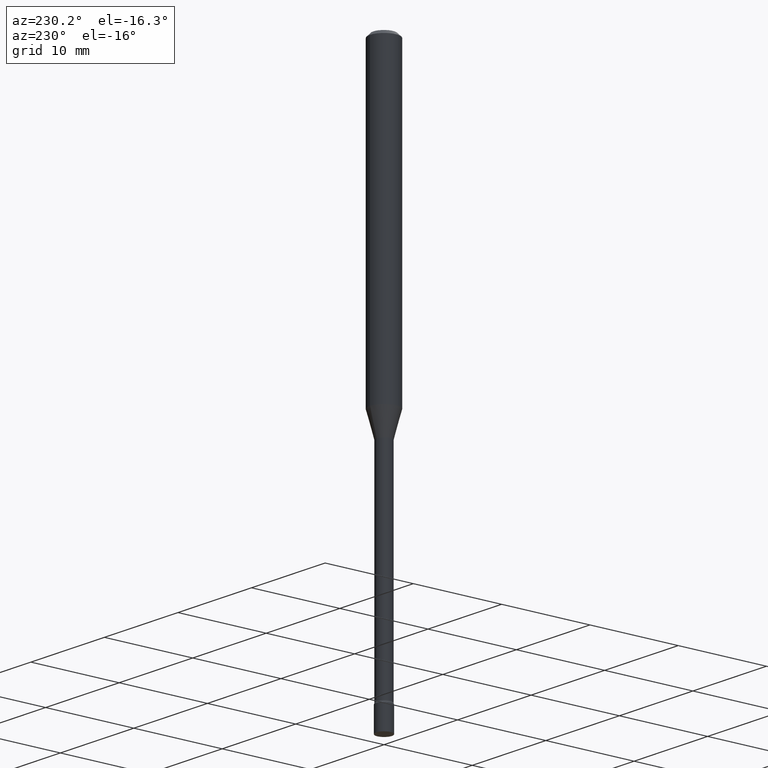
[diagram: clean part render]
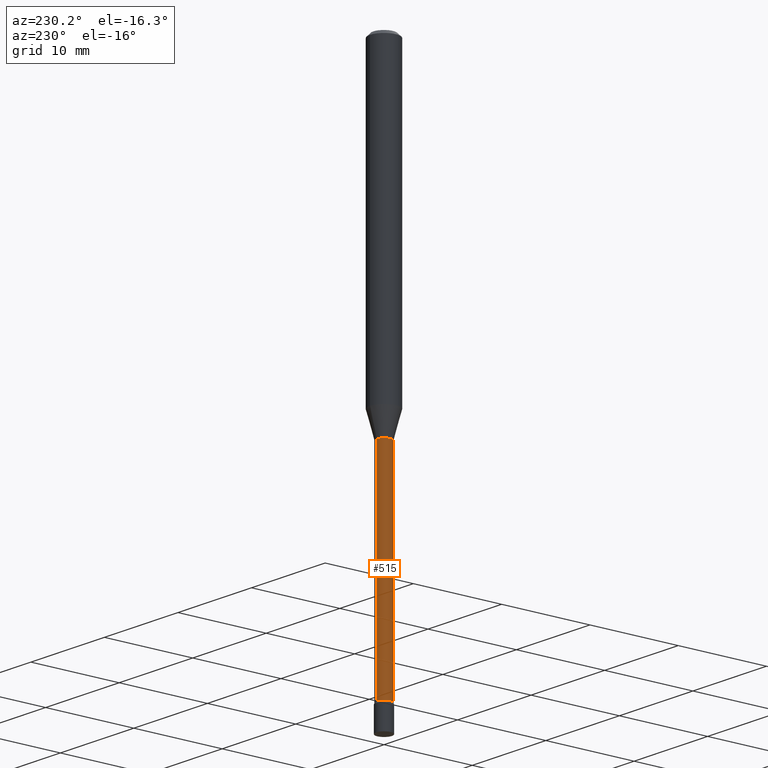
[diagram: same view with one face highlighted and labeled with its STEP entity id]
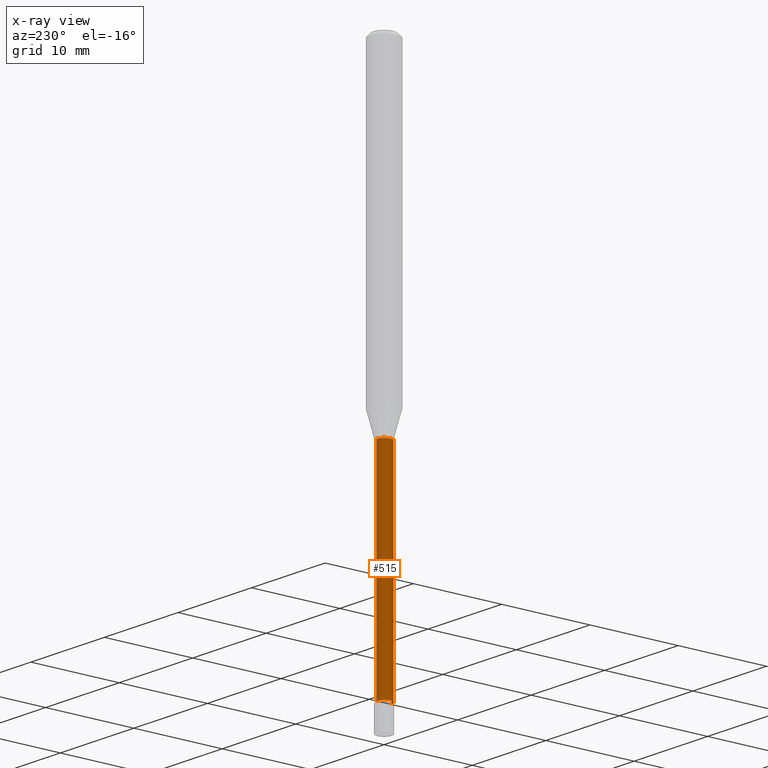
[diagram: x-ray of the same camera — body ghosted, the highlighted face saturated]
A machine part, auxiliary view. The second image highlights one B-rep face of the part: STEP entity #515.
The next image is the same camera in x-ray: the body ghosted, the highlighted face saturated — about 0% of this face is hidden behind the body in this view.
In plain terms, the highlighted cylindrical surface (edge-blend (fillet) strip) has radius 0.8357 mm, axis along (-0, 0, 1).
Its self-contained STEP definition (entity closure, byte-faithful):
#10 = CIRCLE ( 'NONE', #331, 0.03289999999999999175 ) ;
#12 = DIRECTION ( 'NONE',  ( -2.445500635031716319E-29, 3.491435758123258259E-15, 1.000000000000000000 ) ) ;
#24 = ORIENTED_EDGE ( 'NONE', *, *, #178, .T. ) ;
#69 = ORIENTED_EDGE ( 'NONE', *, *, #295, .T. ) ;
#71 = AXIS2_PLACEMENT_3D ( 'NONE', #216, #12, #414 ) ;
#74 = CARTESIAN_POINT ( 'NONE',  ( 2.337685600650734449E-16, 0.03290000000000006808, -1.148682364422554388E-16 ) ) ;
#95 = DIRECTION ( 'NONE',  ( -2.445500635031716319E-29, 3.491435758123258259E-15, 1.000000000000000000 ) ) ;
#130 = LINE ( 'NONE', #364, #233 ) ;
#134 = CARTESIAN_POINT ( 'NONE',  ( -2.297394720958425553E-16, -0.03290000000000506408, -1.451974787463811145 ) ) ;
#141 = ORIENTED_EDGE ( 'NONE', *, *, #231, .F. ) ;
#151 = EDGE_LOOP ( 'NONE', ( #465, #69, #24, #141 ) ) ;
#162 = LINE ( 'NONE', #74, #169 ) ;
#169 = VECTOR ( 'NONE', #387, 39.37007874015748143 ) ;
#178 = EDGE_CURVE ( 'NONE', #328, #457, #130, .T. ) ;
#193 = CARTESIAN_POINT ( 'NONE',  ( 2.337685600651317713E-16, 0.03289999999999492636, -1.451974787463811145 ) ) ;
#197 = CIRCLE ( 'NONE', #71, 0.03290000000000014441 ) ;
#204 = CARTESIAN_POINT ( 'NONE',  ( 2.412292587906128890E-16, 0.03289999999999180386, -2.387345589506696175 ) ) ;
#216 = CARTESIAN_POINT ( 'NONE',  ( 5.838255155178791829E-29, -8.335263758201529460E-15, -2.387345589506696175 ) ) ;
#217 = EDGE_CURVE ( 'NONE', #497, #227, #162, .T. ) ;
#227 = VERTEX_POINT ( 'NONE', #193 ) ;
#231 = EDGE_CURVE ( 'NONE', #227, #457, #10, .T. ) ;
#233 = VECTOR ( 'NONE', #288, 39.37007874015748143 ) ;
#280 = DIRECTION ( 'NONE',  ( -6.982962677686265922E-15, -1.000000000000000000, 0.000000000000000000 ) ) ;
#288 = DIRECTION ( 'NONE',  ( -2.445500635031716319E-29, 3.491435758123258259E-15, 1.000000000000000000 ) ) ;
#295 = EDGE_CURVE ( 'NONE', #497, #328, #197, .T. ) ;
#313 = CARTESIAN_POINT ( 'NONE',  ( 3.550805264792791368E-29, -5.069476692844568029E-15, -1.451974787463811145 ) ) ;
#328 = VERTEX_POINT ( 'NONE', #502 ) ;
#331 = AXIS2_PLACEMENT_3D ( 'NONE', #313, #470, #280 ) ;
#349 = AXIS2_PLACEMENT_3D ( 'NONE', #443, #95, #409 ) ;
#363 = CYLINDRICAL_SURFACE ( 'NONE', #349, 0.03290000000000006808 ) ;
#364 = CARTESIAN_POINT ( 'NONE',  ( -2.297394720958786457E-16, -0.03290000000000006808, 1.148682364422554388E-16 ) ) ;
#387 = DIRECTION ( 'NONE',  ( -2.445500635031716319E-29, 3.491435758123258259E-15, 1.000000000000000000 ) ) ;
#409 = DIRECTION ( 'NONE',  ( -6.982962677686266711E-15, -1.000000000000000000, 3.491435758123258259E-15 ) ) ;
#414 = DIRECTION ( 'NONE',  ( -6.982962677686265133E-15, -1.000000000000000000, 0.000000000000000000 ) ) ;
#443 = CARTESIAN_POINT ( 'NONE',  ( 0.000000000000000000, 0.000000000000000000, 0.000000000000000000 ) ) ;
#448 = FACE_OUTER_BOUND ( 'NONE', #151, .T. ) ;
#457 = VERTEX_POINT ( 'NONE', #134 ) ;
#465 = ORIENTED_EDGE ( 'NONE', *, *, #217, .F. ) ;
#470 = DIRECTION ( 'NONE',  ( -2.445500635031716319E-29, 3.491435758123258259E-15, 1.000000000000000000 ) ) ;
#497 = VERTEX_POINT ( 'NONE', #204 ) ;
#502 = CARTESIAN_POINT ( 'NONE',  ( -2.297394720958207631E-16, -0.03290000000000847802, -2.387345589506696175 ) ) ;
#515 = ADVANCED_FACE ( 'NONE', ( #448 ), #363, .T. ) ;